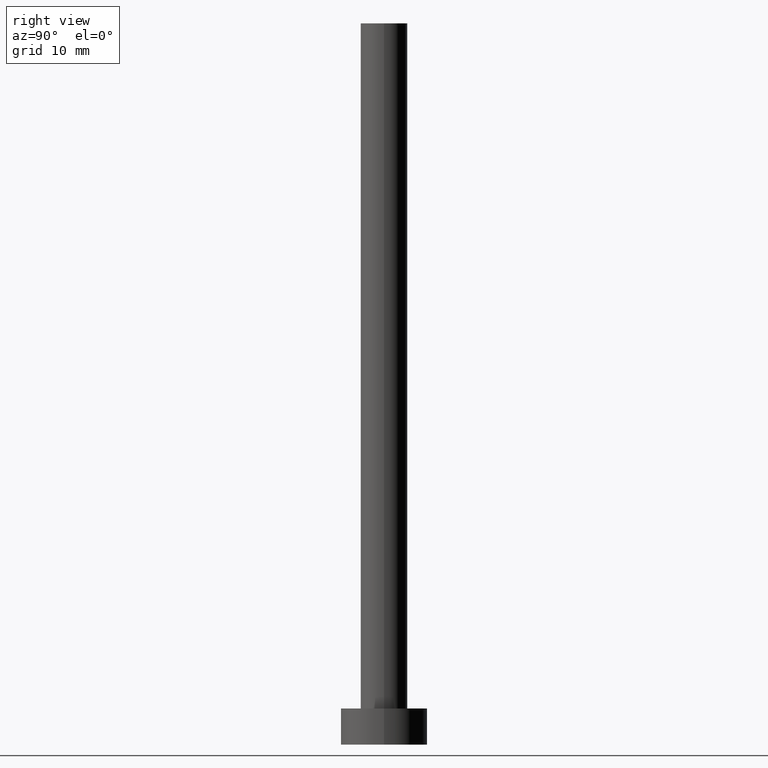
[diagram: clean part render]
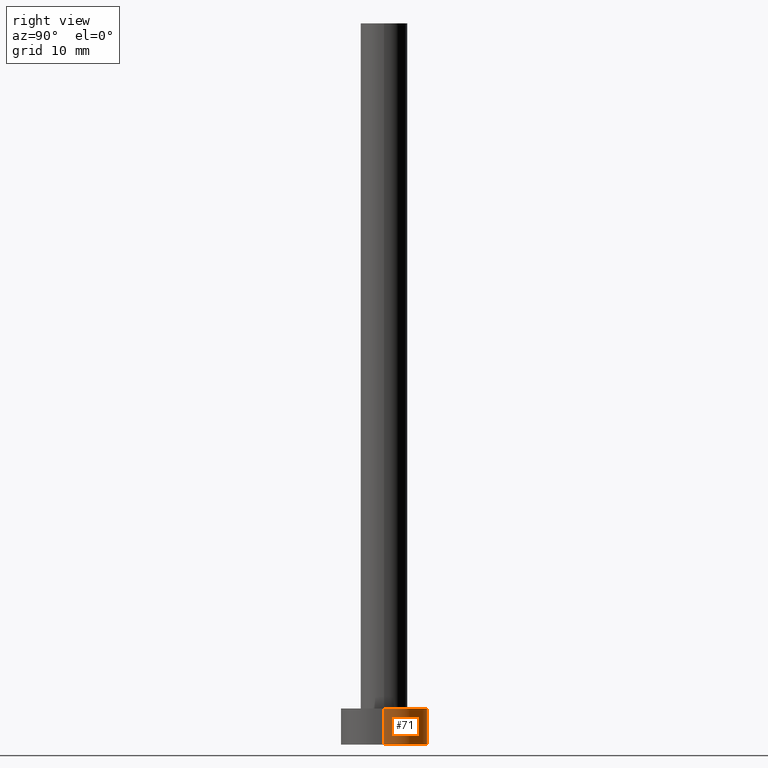
[diagram: same view with one face highlighted and labeled with its STEP entity id]
A machine part, right view. The second image highlights one B-rep face of the part: STEP entity #71.
In plain terms, the highlighted cylindrical surface (partial cylindrical patch) has radius 6 mm, axis along (-0, -0, -1).
Its self-contained STEP definition (entity closure, byte-faithful):
#16 = ORIENTED_EDGE ( 'NONE', *, *, #199, .T. ) ;
#17 = CARTESIAN_POINT ( 'NONE',  ( -6.000000000000000888, 0.000000000000000000, 5.000000000000000000 ) ) ;
#22 = DIRECTION ( 'NONE',  ( -0.000000000000000000, -0.000000000000000000, -1.000000000000000000 ) ) ;
#23 = DIRECTION ( 'NONE',  ( 0.000000000000000000, 0.000000000000000000, 1.000000000000000000 ) ) ;
#25 = DIRECTION ( 'NONE',  ( -0.000000000000000000, -0.000000000000000000, -1.000000000000000000 ) ) ;
#28 = AXIS2_PLACEMENT_3D ( 'NONE', #116, #162, #226 ) ;
#30 = CIRCLE ( 'NONE', #196, 6.000000000000000888 ) ;
#36 = VERTEX_POINT ( 'NONE', #232 ) ;
#39 = EDGE_CURVE ( 'NONE', #36, #189, #77, .T. ) ;
#41 = VECTOR ( 'NONE', #25, 1000.000000000000000 ) ;
#51 = VERTEX_POINT ( 'NONE', #229 ) ;
#52 = AXIS2_PLACEMENT_3D ( 'NONE', #253, #22, #181 ) ;
#71 = ADVANCED_FACE ( 'NONE', ( #210 ), #94, .T. ) ;
#77 = LINE ( 'NONE', #17, #141 ) ;
#94 = CYLINDRICAL_SURFACE ( 'NONE', #52, 6.000000000000000888 ) ;
#106 = CARTESIAN_POINT ( 'NONE',  ( -6.000000000000000888, 0.000000000000000000, 0.000000000000000000 ) ) ;
#113 = EDGE_LOOP ( 'NONE', ( #132, #16, #202, #186 ) ) ;
#116 = CARTESIAN_POINT ( 'NONE',  ( 0.000000000000000000, 0.000000000000000000, 5.000000000000000000 ) ) ;
#120 = CARTESIAN_POINT ( 'NONE',  ( 0.000000000000000000, 0.000000000000000000, 0.000000000000000000 ) ) ;
#127 = DIRECTION ( 'NONE',  ( 1.000000000000000000, 0.000000000000000000, 0.000000000000000000 ) ) ;
#132 = ORIENTED_EDGE ( 'NONE', *, *, #133, .F. ) ;
#133 = EDGE_CURVE ( 'NONE', #204, #36, #177, .T. ) ;
#141 = VECTOR ( 'NONE', #234, 1000.000000000000000 ) ;
#157 = CARTESIAN_POINT ( 'NONE',  ( 6.000000000000000888, 7.347880794884120722E-16, 5.000000000000000000 ) ) ;
#162 = DIRECTION ( 'NONE',  ( 0.000000000000000000, 0.000000000000000000, 1.000000000000000000 ) ) ;
#174 = LINE ( 'NONE', #157, #41 ) ;
#177 = CIRCLE ( 'NONE', #28, 6.000000000000000888 ) ;
#181 = DIRECTION ( 'NONE',  ( -1.000000000000000000, 0.000000000000000000, 0.000000000000000000 ) ) ;
#186 = ORIENTED_EDGE ( 'NONE', *, *, #39, .F. ) ;
#189 = VERTEX_POINT ( 'NONE', #106 ) ;
#196 = AXIS2_PLACEMENT_3D ( 'NONE', #120, #23, #127 ) ;
#199 = EDGE_CURVE ( 'NONE', #204, #51, #174, .T. ) ;
#202 = ORIENTED_EDGE ( 'NONE', *, *, #235, .T. ) ;
#204 = VERTEX_POINT ( 'NONE', #219 ) ;
#210 = FACE_OUTER_BOUND ( 'NONE', #113, .T. ) ;
#219 = CARTESIAN_POINT ( 'NONE',  ( 6.000000000000000888, 7.347880794884120722E-16, 5.000000000000000000 ) ) ;
#226 = DIRECTION ( 'NONE',  ( 1.000000000000000000, 0.000000000000000000, 0.000000000000000000 ) ) ;
#229 = CARTESIAN_POINT ( 'NONE',  ( 6.000000000000000888, 7.347880794884120722E-16, 0.000000000000000000 ) ) ;
#232 = CARTESIAN_POINT ( 'NONE',  ( -6.000000000000000888, 0.000000000000000000, 5.000000000000000000 ) ) ;
#234 = DIRECTION ( 'NONE',  ( -0.000000000000000000, -0.000000000000000000, -1.000000000000000000 ) ) ;
#235 = EDGE_CURVE ( 'NONE', #51, #189, #30, .T. ) ;
#253 = CARTESIAN_POINT ( 'NONE',  ( 0.000000000000000000, 0.000000000000000000, 5.000000000000000000 ) ) ;